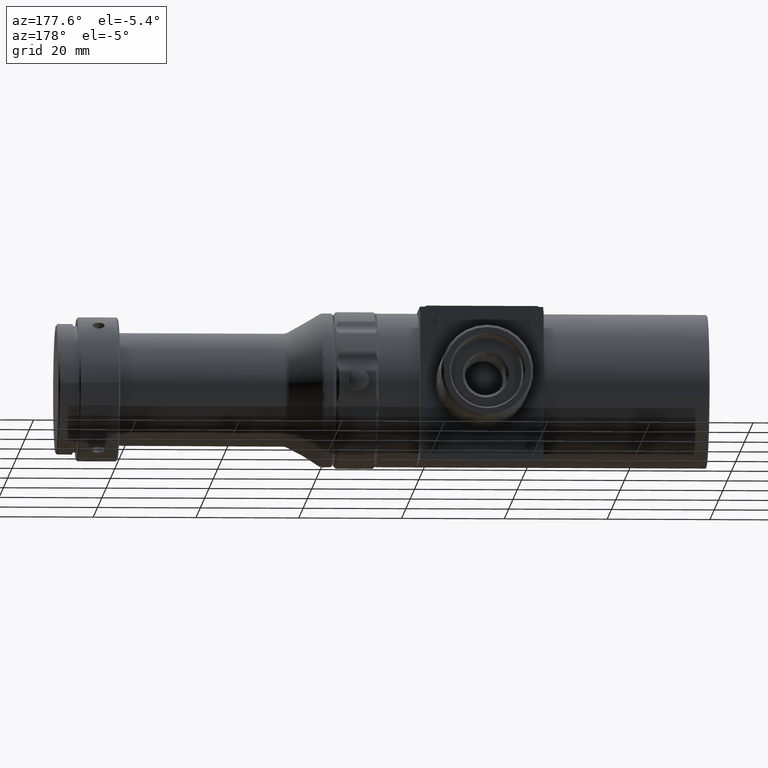
[diagram: clean part render]
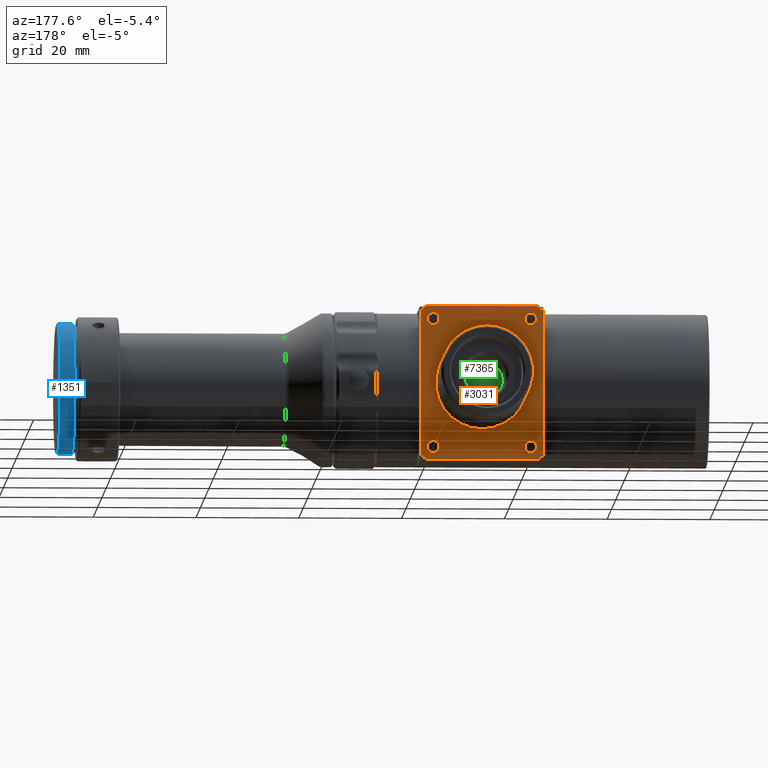
[diagram: same view with three faces highlighted in distinct colors, each labeled with its STEP entity id]
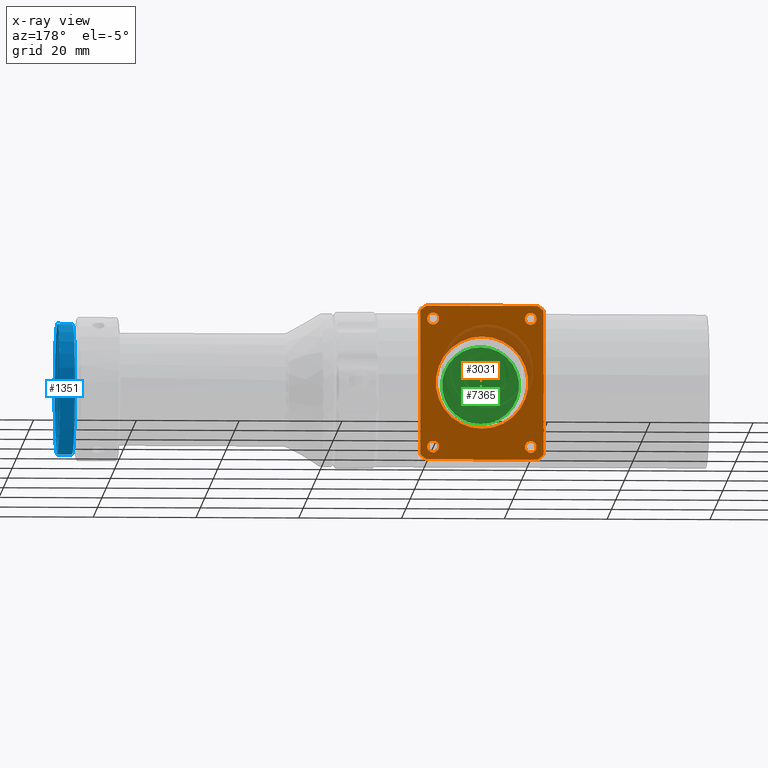
[diagram: x-ray of the same camera — body ghosted, the three highlighted faces saturated]
A machine part, auxiliary view with three faces highlighted in distinct colors.
The next image is the same camera in x-ray (body ghosted, the three faces saturated) — at least one of them is partly hidden behind the body in this view.
Their STEP definitions:

[orange] entity #3031 — the highlighted planar face has unit normal (0, -1, 0).
#49 = ORIENTED_EDGE ( 'NONE', *, *, #6884, .F. ) ;
#80 = AXIS2_PLACEMENT_3D ( 'NONE', #1361, #4791, #3529 ) ;
#100 = VERTEX_POINT ( 'NONE', #5210 ) ;
#110 = CIRCLE ( 'NONE', #236, 18.50000000000000000 ) ;
#188 = VERTEX_POINT ( 'NONE', #3568 ) ;
#201 = DIRECTION ( 'NONE',  ( 0.000000000000000000, -1.665334536937734811E-16, -1.000000000000000000 ) ) ;
#236 = AXIS2_PLACEMENT_3D ( 'NONE', #6627, #901, #1990 ) ;
#242 = VERTEX_POINT ( 'NONE', #5152 ) ;
#318 = CARTESIAN_POINT ( 'NONE',  ( -23.58582244241313219, 16.99999999999999645, 14.99999999999999822 ) ) ;
#350 = EDGE_LOOP ( 'NONE', ( #408 ) ) ;
#404 = FACE_BOUND ( 'NONE', #4594, .T. ) ;
#408 = ORIENTED_EDGE ( 'NONE', *, *, #2428, .F. ) ;
#442 = CARTESIAN_POINT ( 'NONE',  ( -0.7576185285592760277, 16.99999999999999645, 14.99999999999999822 ) ) ;
#450 = EDGE_CURVE ( 'NONE', #4283, #4283, #2100, .T. ) ;
#478 = EDGE_LOOP ( 'NONE', ( #4678 ) ) ;
#608 = CARTESIAN_POINT ( 'NONE',  ( 0.4141775575868672510, 16.99999999999999645, 14.08012784032871956 ) ) ;
#626 = EDGE_CURVE ( 'NONE', #3181, #3181, #1363, .T. ) ;
#699 = DIRECTION ( 'NONE',  ( -1.000000000000000000, -9.757252206311140976E-49, -5.859034320067041051E-33 ) ) ;
#867 = LINE ( 'NONE', #5505, #6683 ) ;
#901 = DIRECTION ( 'NONE',  ( 1.107696631857502404E-17, -1.000000000000000000, 1.665334536937734811E-16 ) ) ;
#1031 = DIRECTION ( 'NONE',  ( 1.107696631857502404E-17, -1.000000000000000000, 1.665334536937734811E-16 ) ) ;
#1033 = PLANE ( 'NONE',  #1266 ) ;
#1188 = ORIENTED_EDGE ( 'NONE', *, *, #6775, .T. ) ;
#1210 = ORIENTED_EDGE ( 'NONE', *, *, #6938, .F. ) ;
#1251 = CARTESIAN_POINT ( 'NONE',  ( -21.08582244241313219, 16.99999999999999645, -11.35000000000000853 ) ) ;
#1266 = AXIS2_PLACEMENT_3D ( 'NONE', #4312, #2566, #6608 ) ;
#1279 = CARTESIAN_POINT ( 'NONE',  ( -23.58582244241313219, 16.99999999999999289, -3.802513859341161151E-15 ) ) ;
#1321 = CIRCLE ( 'NONE', #6453, 18.50000000000000000 ) ;
#1361 = CARTESIAN_POINT ( 'NONE',  ( -2.085822442413131750, 16.99999999999999645, -12.50000000000000533 ) ) ;
#1363 = CIRCLE ( 'NONE', #3636, 9.000000000000001776 ) ;
#1385 = CARTESIAN_POINT ( 'NONE',  ( -23.58582244241313219, 16.99999999999999645, 14.08012784032871778 ) ) ;
#1460 = CARTESIAN_POINT ( 'NONE',  ( -11.58582244241313042, 16.99999999999999289, -9.000000000000005329 ) ) ;
#1661 = DIRECTION ( 'NONE',  ( 1.107696631857502404E-17, -1.000000000000000000, 1.665334536937734811E-16 ) ) ;
#1735 = DIRECTION ( 'NONE',  ( -1.331517478857873583E-14, 1.875376730785737473E-16, 1.000000000000000000 ) ) ;
#1741 = EDGE_CURVE ( 'NONE', #2489, #2489, #2329, .T. ) ;
#1857 = CARTESIAN_POINT ( 'NONE',  ( -23.58582244241313219, 16.99999999999999289, -15.00000000000000355 ) ) ;
#1948 = VERTEX_POINT ( 'NONE', #4738 ) ;
#1990 = DIRECTION ( 'NONE',  ( -1.594070221167876943E-14, 1.875376730785737473E-16, 1.000000000000000000 ) ) ;
#2100 = CIRCLE ( 'NONE', #2330, 1.149999999999998135 ) ;
#2127 = FACE_BOUND ( 'NONE', #3773, .T. ) ;
#2200 = ORIENTED_EDGE ( 'NONE', *, *, #3141, .F. ) ;
#2304 = DIRECTION ( 'NONE',  ( 0.000000000000000000, 0.000000000000000000, -1.000000000000000000 ) ) ;
#2329 = CIRCLE ( 'NONE', #6630, 1.149999999999998135 ) ;
#2330 = AXIS2_PLACEMENT_3D ( 'NONE', #2790, #3953, #4467 ) ;
#2428 = EDGE_CURVE ( 'NONE', #100, #100, #6394, .T. ) ;
#2489 = VERTEX_POINT ( 'NONE', #1251 ) ;
#2566 = DIRECTION ( 'NONE',  ( 1.107696631857502404E-17, -1.000000000000000000, 1.665334536937734811E-16 ) ) ;
#2702 = AXIS2_PLACEMENT_3D ( 'NONE', #5134, #1661, #2755 ) ;
#2755 = DIRECTION ( 'NONE',  ( 0.000000000000000000, 1.875376730785737473E-16, 1.000000000000000000 ) ) ;
#2766 = EDGE_LOOP ( 'NONE', ( #1210, #49, #1188, #4978, #3281, #2200, #7298, #6652 ) ) ;
#2790 = CARTESIAN_POINT ( 'NONE',  ( -21.08582244241313219, 16.99999999999999645, 12.49999999999999467 ) ) ;
#2872 = AXIS2_PLACEMENT_3D ( 'NONE', #7312, #6743, #3862 ) ;
#2935 = CARTESIAN_POINT ( 'NONE',  ( -21.08582244241313219, 16.99999999999999645, 13.64999999999999325 ) ) ;
#3000 = VERTEX_POINT ( 'NONE', #442 ) ;
#3031 = ADVANCED_FACE ( 'NONE', ( #4273, #404, #4952, #3724, #2127, #5997 ), #1033, .F. ) ;
#3035 = LINE ( 'NONE', #1279, #3594 ) ;
#3141 = EDGE_CURVE ( 'NONE', #5020, #1948, #5563, .T. ) ;
#3181 = VERTEX_POINT ( 'NONE', #1460 ) ;
#3254 = EDGE_CURVE ( 'NONE', #5850, #5850, #4008, .T. ) ;
#3281 = ORIENTED_EDGE ( 'NONE', *, *, #5781, .F. ) ;
#3304 = CARTESIAN_POINT ( 'NONE',  ( -22.41402635626698370, 16.99999999999999289, -15.00000000000000355 ) ) ;
#3327 = DIRECTION ( 'NONE',  ( -1.107696631857502404E-17, 1.000000000000000000, -1.665334536937734811E-16 ) ) ;
#3339 = VECTOR ( 'NONE', #699, 1000.000000000000000 ) ;
#3529 = DIRECTION ( 'NONE',  ( 0.000000000000000000, 0.000000000000000000, 1.000000000000000000 ) ) ;
#3568 = CARTESIAN_POINT ( 'NONE',  ( -23.58582244241313219, 16.99999999999999289, -14.08012784032872489 ) ) ;
#3594 = VECTOR ( 'NONE', #201, 1000.000000000000000 ) ;
#3636 = AXIS2_PLACEMENT_3D ( 'NONE', #4690, #5136, #2304 ) ;
#3724 = FACE_BOUND ( 'NONE', #478, .T. ) ;
#3773 = EDGE_LOOP ( 'NONE', ( #5428 ) ) ;
#3862 = DIRECTION ( 'NONE',  ( 8.439195288535818750E-16, 1.875376730785737473E-16, 1.000000000000000000 ) ) ;
#3922 = DIRECTION ( 'NONE',  ( 0.000000000000000000, 0.000000000000000000, 1.000000000000000000 ) ) ;
#3953 = DIRECTION ( 'NONE',  ( -1.107696631857502404E-17, 1.000000000000000000, -1.665334536937734811E-16 ) ) ;
#4008 = CIRCLE ( 'NONE', #80, 1.149999999999999911 ) ;
#4060 = VECTOR ( 'NONE', #5539, 1000.000000000000000 ) ;
#4207 = EDGE_LOOP ( 'NONE', ( #5044 ) ) ;
#4273 = FACE_OUTER_BOUND ( 'NONE', #2766, .T. ) ;
#4283 = VERTEX_POINT ( 'NONE', #2935 ) ;
#4312 = CARTESIAN_POINT ( 'NONE',  ( -11.58582244241313042, 16.99999999999999289, -3.802513859341161151E-15 ) ) ;
#4381 = LINE ( 'NONE', #318, #4060 ) ;
#4446 = CARTESIAN_POINT ( 'NONE',  ( -0.7576185285592751395, 16.99999999999999289, -15.00000000000000355 ) ) ;
#4462 = CARTESIAN_POINT ( 'NONE',  ( -11.58582244241313042, 16.99999999999999645, -3.802513859341161151E-15 ) ) ;
#4467 = DIRECTION ( 'NONE',  ( 0.000000000000000000, 0.000000000000000000, 1.000000000000000000 ) ) ;
#4594 = EDGE_LOOP ( 'NONE', ( #5182 ) ) ;
#4678 = ORIENTED_EDGE ( 'NONE', *, *, #1741, .F. ) ;
#4690 = CARTESIAN_POINT ( 'NONE',  ( -11.58582244241313042, 16.99999999999999289, -3.802513859341162729E-15 ) ) ;
#4716 = AXIS2_PLACEMENT_3D ( 'NONE', #5893, #6500, #4846 ) ;
#4738 = CARTESIAN_POINT ( 'NONE',  ( 0.4141775575868672510, 16.99999999999999289, -14.08012784032872844 ) ) ;
#4791 = DIRECTION ( 'NONE',  ( -1.107696631857502404E-17, 1.000000000000000000, -1.665334536937734811E-16 ) ) ;
#4802 = EDGE_CURVE ( 'NONE', #6114, #3000, #110, .T. ) ;
#4846 = DIRECTION ( 'NONE',  ( 0.000000000000000000, 0.000000000000000000, 1.000000000000000000 ) ) ;
#4952 = FACE_BOUND ( 'NONE', #4207, .T. ) ;
#4978 = ORIENTED_EDGE ( 'NONE', *, *, #4802, .F. ) ;
#5020 = VERTEX_POINT ( 'NONE', #4446 ) ;
#5044 = ORIENTED_EDGE ( 'NONE', *, *, #450, .F. ) ;
#5133 = CIRCLE ( 'NONE', #2872, 18.50000000000000000 ) ;
#5134 = CARTESIAN_POINT ( 'NONE',  ( -11.58582244241313042, 16.99999999999999645, -3.802513859341161151E-15 ) ) ;
#5136 = DIRECTION ( 'NONE',  ( -1.107696631857502404E-17, 1.000000000000000000, -1.665334536937734811E-16 ) ) ;
#5152 = CARTESIAN_POINT ( 'NONE',  ( -22.41402635626698370, 16.99999999999999645, 14.99999999999999822 ) ) ;
#5182 = ORIENTED_EDGE ( 'NONE', *, *, #626, .F. ) ;
#5210 = CARTESIAN_POINT ( 'NONE',  ( -2.085822442413131750, 16.99999999999999645, 13.64999999999999503 ) ) ;
#5322 = EDGE_CURVE ( 'NONE', #5020, #6906, #6979, .T. ) ;
#5428 = ORIENTED_EDGE ( 'NONE', *, *, #3254, .F. ) ;
#5505 = CARTESIAN_POINT ( 'NONE',  ( 0.4141775575868672510, 16.99999999999999289, -3.802513859341161151E-15 ) ) ;
#5539 = DIRECTION ( 'NONE',  ( 1.000000000000000000, 9.757252206311140976E-49, 5.859034320067041051E-33 ) ) ;
#5563 = CIRCLE ( 'NONE', #2702, 18.50000000000000000 ) ;
#5781 = EDGE_CURVE ( 'NONE', #1948, #6114, #867, .T. ) ;
#5850 = VERTEX_POINT ( 'NONE', #6974 ) ;
#5893 = CARTESIAN_POINT ( 'NONE',  ( -2.085822442413131750, 16.99999999999999645, 12.49999999999999467 ) ) ;
#5997 = FACE_BOUND ( 'NONE', #350, .T. ) ;
#6114 = VERTEX_POINT ( 'NONE', #608 ) ;
#6176 = VERTEX_POINT ( 'NONE', #1385 ) ;
#6394 = CIRCLE ( 'NONE', #4716, 1.149999999999999911 ) ;
#6453 = AXIS2_PLACEMENT_3D ( 'NONE', #4462, #1031, #1735 ) ;
#6500 = DIRECTION ( 'NONE',  ( -1.107696631857502404E-17, 1.000000000000000000, -1.665334536937734811E-16 ) ) ;
#6519 = EDGE_CURVE ( 'NONE', #188, #6906, #1321, .T. ) ;
#6598 = DIRECTION ( 'NONE',  ( -0.000000000000000000, 1.665334536937734811E-16, 1.000000000000000000 ) ) ;
#6608 = DIRECTION ( 'NONE',  ( 0.000000000000000000, -1.665334536937734811E-16, -1.000000000000000000 ) ) ;
#6627 = CARTESIAN_POINT ( 'NONE',  ( -11.58582244241313042, 16.99999999999999289, -3.802513859341161151E-15 ) ) ;
#6630 = AXIS2_PLACEMENT_3D ( 'NONE', #7221, #3327, #3922 ) ;
#6652 = ORIENTED_EDGE ( 'NONE', *, *, #6519, .F. ) ;
#6683 = VECTOR ( 'NONE', #6598, 1000.000000000000000 ) ;
#6743 = DIRECTION ( 'NONE',  ( 1.107696631857502404E-17, -1.000000000000000000, 1.665334536937734811E-16 ) ) ;
#6775 = EDGE_CURVE ( 'NONE', #242, #3000, #4381, .T. ) ;
#6884 = EDGE_CURVE ( 'NONE', #242, #6176, #5133, .T. ) ;
#6906 = VERTEX_POINT ( 'NONE', #3304 ) ;
#6938 = EDGE_CURVE ( 'NONE', #6176, #188, #3035, .T. ) ;
#6974 = CARTESIAN_POINT ( 'NONE',  ( -2.085822442413131750, 16.99999999999999645, -11.35000000000000675 ) ) ;
#6979 = LINE ( 'NONE', #1857, #3339 ) ;
#7221 = CARTESIAN_POINT ( 'NONE',  ( -21.08582244241313219, 16.99999999999999645, -12.50000000000000533 ) ) ;
#7298 = ORIENTED_EDGE ( 'NONE', *, *, #5322, .T. ) ;
#7312 = CARTESIAN_POINT ( 'NONE',  ( -11.58582244241313042, 16.99999999999999289, -3.802513859341160362E-15 ) ) ;

[blue] entity #1351 — the highlighted cylindrical surface (bore or boss wall) has radius 12.7 mm, axis along (1, -0, 0).
#76 = DIRECTION ( 'NONE',  ( -1.000000000000000000, 3.688801789433294533E-16, -1.785482631856101845E-16 ) ) ;
#305 = CARTESIAN_POINT ( 'NONE',  ( 67.43827917272460581, 2.331420576525348371E-15, -3.412934176066676082E-15 ) ) ;
#1130 = AXIS2_PLACEMENT_3D ( 'NONE', #2362, #3476, #5154 ) ;
#1340 = ORIENTED_EDGE ( 'NONE', *, *, #3483, .T. ) ;
#1351 = ADVANCED_FACE ( 'NONE', ( #5834, #2849 ), #3407, .T. ) ;
#1553 = EDGE_CURVE ( 'NONE', #2973, #2973, #5898, .T. ) ;
#1854 = VERTEX_POINT ( 'NONE', #5286 ) ;
#1991 = CIRCLE ( 'NONE', #6644, 12.69999999999997797 ) ;
#2362 = CARTESIAN_POINT ( 'NONE',  ( 70.63827917272459445, 1.151004003906695224E-15, -2.841579733872724044E-15 ) ) ;
#2686 = AXIS2_PLACEMENT_3D ( 'NONE', #305, #7106, #6545 ) ;
#2849 = FACE_OUTER_BOUND ( 'NONE', #7107, .T. ) ;
#2912 = CARTESIAN_POINT ( 'NONE',  ( 70.33827917272459729, 1.261668057589690925E-15, -2.895144212828405532E-15 ) ) ;
#2973 = VERTEX_POINT ( 'NONE', #6370 ) ;
#3407 = CYLINDRICAL_SURFACE ( 'NONE', #1130, 12.69999999999997797 ) ;
#3476 = DIRECTION ( 'NONE',  ( 1.000000000000000000, -3.688801789433294533E-16, 1.785482631856101845E-16 ) ) ;
#3483 = EDGE_CURVE ( 'NONE', #1854, #1854, #1991, .T. ) ;
#5154 = DIRECTION ( 'NONE',  ( 0.000000000000000000, 1.000000000000000000, 0.000000000000000000 ) ) ;
#5286 = CARTESIAN_POINT ( 'NONE',  ( 70.33827917272459729, 12.69999999999997975, -2.895144212828405532E-15 ) ) ;
#5378 = EDGE_LOOP ( 'NONE', ( #1340 ) ) ;
#5834 = FACE_OUTER_BOUND ( 'NONE', #5378, .T. ) ;
#5898 = CIRCLE ( 'NONE', #2686, 12.69999999999997797 ) ;
#6276 = ORIENTED_EDGE ( 'NONE', *, *, #1553, .T. ) ;
#6351 = DIRECTION ( 'NONE',  ( 0.000000000000000000, 1.000000000000000000, 0.000000000000000000 ) ) ;
#6370 = CARTESIAN_POINT ( 'NONE',  ( 67.43827917272460581, 12.69999999999997975, -3.412934176066676082E-15 ) ) ;
#6545 = DIRECTION ( 'NONE',  ( 0.000000000000000000, 1.000000000000000000, 0.000000000000000000 ) ) ;
#6644 = AXIS2_PLACEMENT_3D ( 'NONE', #2912, #76, #6351 ) ;
#7106 = DIRECTION ( 'NONE',  ( 1.000000000000000000, -3.688801789433294533E-16, 1.785482631856101845E-16 ) ) ;
#7107 = EDGE_LOOP ( 'NONE', ( #6276 ) ) ;

[green] entity #7365 — the highlighted planar face has unit normal (0, -1, 0).
#125 = EDGE_CURVE ( 'NONE', #3733, #3733, #3503, .T. ) ;
#338 = FACE_OUTER_BOUND ( 'NONE', #6722, .T. ) ;
#377 = CARTESIAN_POINT ( 'NONE',  ( -11.58582244241313042, 10.59999999999999432, -2.736699755701010714E-15 ) ) ;
#652 = CARTESIAN_POINT ( 'NONE',  ( -11.58582244241313042, 10.59999999999999787, -2.736699755701013870E-15 ) ) ;
#2654 = DIRECTION ( 'NONE',  ( 0.000000000000000000, -1.665334536937734811E-16, -1.000000000000000000 ) ) ;
#2997 = AXIS2_PLACEMENT_3D ( 'NONE', #377, #5935, #2654 ) ;
#3503 = CIRCLE ( 'NONE', #3883, 7.500000000000002665 ) ;
#3733 = VERTEX_POINT ( 'NONE', #4773 ) ;
#3848 = ORIENTED_EDGE ( 'NONE', *, *, #125, .T. ) ;
#3883 = AXIS2_PLACEMENT_3D ( 'NONE', #652, #4049, #3909 ) ;
#3909 = DIRECTION ( 'NONE',  ( 0.000000000000000000, -2.312964634635741971E-16, -1.000000000000000000 ) ) ;
#4049 = DIRECTION ( 'NONE',  ( -1.107696631857502404E-17, 1.000000000000000000, -1.665334536937734811E-16 ) ) ;
#4773 = CARTESIAN_POINT ( 'NONE',  ( -11.58582244241313042, 10.59999999999999609, -7.500000000000005329 ) ) ;
#4923 = PLANE ( 'NONE',  #2997 ) ;
#5935 = DIRECTION ( 'NONE',  ( 1.107696631857502404E-17, -1.000000000000000000, 1.665334536937734811E-16 ) ) ;
#6722 = EDGE_LOOP ( 'NONE', ( #3848 ) ) ;
#7365 = ADVANCED_FACE ( 'NONE', ( #338 ), #4923, .F. ) ;